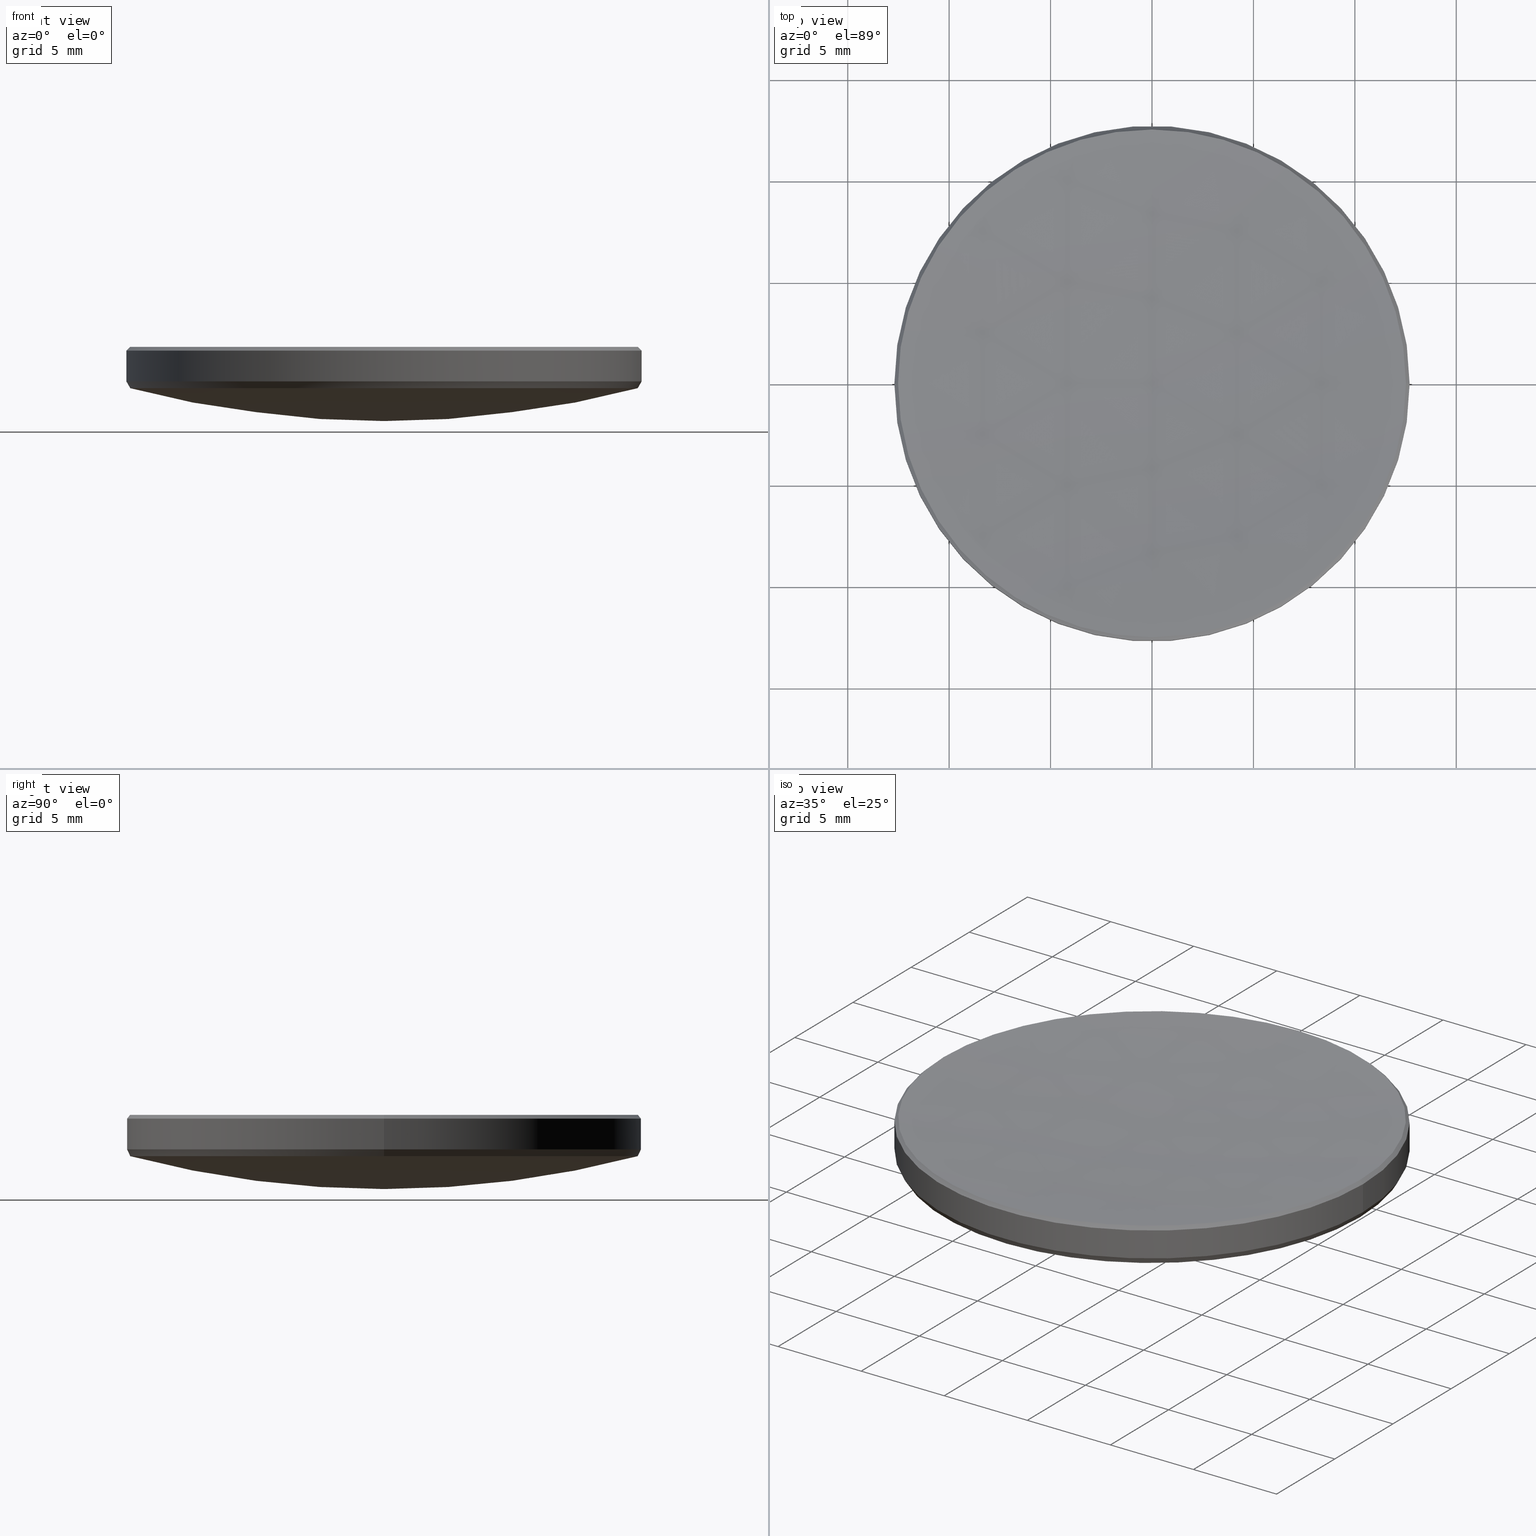
[diagram: canonical four-view strip — front | top / right | iso, engineering-drawing reading convention]
A machine part, canonical four-view strip (front | top / right | iso — engineering-drawing reading convention). The complete STEP part file that produces these views, byte-faithful:
ISO-10303-21;
HEADER;
FILE_DESCRIPTION (( 'STEP AP214' ),
    '1' );
FILE_NAME ('GLM1-025B-150-NIR.STEP',
    '2024-08-09T02:15:41',
    ( 'Windows User' ),
    ( 'P R C' ),
    'SwSTEP 2.0',
    'SolidWorks 2022',
    '' );
FILE_SCHEMA (( 'AUTOMOTIVE_DESIGN' ));
ENDSEC;

DATA;
#1 = EDGE_CURVE ( 'NONE', #115, #258, #35, .T. ) ;
#2 = SHAPE_DEFINITION_REPRESENTATION ( #219, #269 ) ;
#3 = VECTOR ( 'NONE', #83, 1000.000000000000000 ) ;
#4 =( LENGTH_UNIT ( ) NAMED_UNIT ( * ) SI_UNIT ( .MILLI., .METRE. ) );
#5 = EDGE_CURVE ( 'NONE', #319, #9, #18, .T. ) ;
#6 = ADVANCED_FACE ( 'NONE', ( #218 ), #292, .F. ) ;
#7 = ORIENTED_EDGE ( 'NONE', *, *, #234, .T. ) ;
#8 = AXIS2_PLACEMENT_3D ( 'NONE', #248, #172, #20 ) ;
#9 = VERTEX_POINT ( 'NONE', #290 ) ;
#10 = ADVANCED_FACE ( 'NONE', ( #116 ), #166, .T. ) ;
#11 = DIRECTION ( 'NONE',  ( 0.000000000000000000, 0.000000000000000000, -1.000000000000000000 ) ) ;
#12 = ORIENTED_EDGE ( 'NONE', *, *, #162, .F. ) ;
#13 = ORIENTED_EDGE ( 'NONE', *, *, #187, .T. ) ;
#14 = ORIENTED_EDGE ( 'NONE', *, *, #131, .T. ) ;
#15 = CIRCLE ( 'NONE', #296, 131.5600000000000023 ) ;
#16 = DIRECTION ( 'NONE',  ( -1.000000000000000000, 0.000000000000000000, 0.000000000000000000 ) ) ;
#17 = CARTESIAN_POINT ( 'NONE',  ( 0.000000000000000000, 0.000000000000000000, 10.00000000000000000 ) ) ;
#18 = LINE ( 'NONE', #242, #317 ) ;
#19 = DIRECTION ( 'NONE',  ( 0.000000000000000000, 1.000000000000000000, 0.000000000000000000 ) ) ;
#20 = DIRECTION ( 'NONE',  ( 1.000000000000000000, 0.000000000000000000, 0.000000000000000000 ) ) ;
#21 = DIRECTION ( 'NONE',  ( 1.000000000000000000, 0.000000000000000000, 0.000000000000000000 ) ) ;
#22 = AXIS2_PLACEMENT_3D ( 'NONE', #199, #144, #170 ) ;
#23 = SURFACE_SIDE_STYLE ('',( #306 ) ) ;
#24 = DIRECTION ( 'NONE',  ( -0.000000000000000000, -0.000000000000000000, -1.000000000000000000 ) ) ;
#25 =( NAMED_UNIT ( * ) PLANE_ANGLE_UNIT ( ) SI_UNIT ( $, .RADIAN. ) );
#26 = UNCERTAINTY_MEASURE_WITH_UNIT (LENGTH_MEASURE( 1.000000000000000082E-05 ), #57, 'distance_accuracy_value', 'NONE');
#27 = DIRECTION ( 'NONE',  ( -0.000000000000000000, -0.000000000000000000, -1.000000000000000000 ) ) ;
#28 = CARTESIAN_POINT ( 'NONE',  ( 0.000000000000000000, 0.000000000000000000, 4.282866881517001900 ) ) ;
#29 = AXIS2_PLACEMENT_3D ( 'NONE', #53, #76, #202 ) ;
#30 =( NAMED_UNIT ( * ) PLANE_ANGLE_UNIT ( ) SI_UNIT ( $, .RADIAN. ) );
#31 = APPLICATION_PROTOCOL_DEFINITION ( 'draft international standard', 'automotive_design', 1998, #321 ) ;
#32 = EDGE_CURVE ( 'NONE', #213, #191, #15, .T. ) ;
#33 = PRODUCT_CONTEXT ( 'NONE', #132, 'mechanical' ) ;
#34 = APPLICATION_PROTOCOL_DEFINITION ( 'draft international standard', 'automotive_design', 1998, #132 ) ;
#35 = CIRCLE ( 'NONE', #133, 49.05999999999999517 ) ;
#36 = ORIENTED_EDGE ( 'NONE', *, *, #112, .T. ) ;
#37 = VECTOR ( 'NONE', #141, 1000.000000000000000 ) ;
#38 = EDGE_LOOP ( 'NONE', ( #108, #12, #60, #161, #58 ) ) ;
#39 = CARTESIAN_POINT ( 'NONE',  ( 12.69999999999999929, 1.555301434917138433E-15, 4.282866881517001900 ) ) ;
#40 = CARTESIAN_POINT ( 'NONE',  ( 0.000000000000000000, 0.000000000000000000, 51.38769460524535049 ) ) ;
#41 = EDGE_LOOP ( 'NONE', ( #267, #318, #160, #155, #190 ) ) ;
#42 = VERTEX_POINT ( 'NONE', #90 ) ;
#43 = EDGE_LOOP ( 'NONE', ( #293, #136, #268, #212, #163 ) ) ;
#44 = CONICAL_SURFACE ( 'NONE', #278, 12.51756548749907161, 0.7853981633974911336 ) ;
#45 = CIRCLE ( 'NONE', #134, 12.51756548749907694 ) ;
#46 = ORIENTED_EDGE ( 'NONE', *, *, #143, .T. ) ;
#47 = DIRECTION ( 'NONE',  ( -1.000000000000000000, 0.000000000000000000, 0.000000000000000000 ) ) ;
#48 = CARTESIAN_POINT ( 'NONE',  ( -1.532959650738299683E-15, -12.51756548749897568, 5.982434512500911516 ) ) ;
#49 = FACE_OUTER_BOUND ( 'NONE', #38, .T. ) ;
#50 = SPHERICAL_SURFACE ( 'NONE', #207, 49.05999999999999517 ) ;
#51 = FILL_AREA_STYLE_COLOUR ( '', #194 ) ;
#52 = FACE_OUTER_BOUND ( 'NONE', #308, .T. ) ;
#53 = CARTESIAN_POINT ( 'NONE',  ( 0.000000000000000000, 0.000000000000000000, 5.982434512500911516 ) ) ;
#54 = CARTESIAN_POINT ( 'NONE',  ( 0.000000000000000000, 0.000000000000000000, 3.948723936848863580 ) ) ;
#55 = DIRECTION ( 'NONE',  ( -1.000000000000000000, 0.000000000000000000, 0.000000000000000000 ) ) ;
#56 = CIRCLE ( 'NONE', #330, 12.51756548749907694 ) ;
#57 =( LENGTH_UNIT ( ) NAMED_UNIT ( * ) SI_UNIT ( .MILLI., .METRE. ) );
#58 = ORIENTED_EDGE ( 'NONE', *, *, #74, .F. ) ;
#59 = FACE_OUTER_BOUND ( 'NONE', #119, .T. ) ;
#60 = ORIENTED_EDGE ( 'NONE', *, *, #286, .F. ) ;
#61 = EDGE_CURVE ( 'NONE', #264, #67, #188, .T. ) ;
#62 = DIRECTION ( 'NONE',  ( -0.000000000000000000, -0.000000000000000000, -1.000000000000000000 ) ) ;
#63 = ORIENTED_EDGE ( 'NONE', *, *, #286, .T. ) ;
#64 = VERTEX_POINT ( 'NONE', #39 ) ;
#65 = ADVANCED_FACE ( 'NONE', ( #244 ), #185, .T. ) ;
#66 = ORIENTED_EDGE ( 'NONE', *, *, #245, .F. ) ;
#67 = VERTEX_POINT ( 'NONE', #221 ) ;
#68 = CLOSED_SHELL ( 'NONE', ( #70, #10, #261, #227, #65, #184, #201, #6, #95, #259 ) ) ;
#69 = CARTESIAN_POINT ( 'NONE',  ( 0.000000000000000000, 0.000000000000000000, 136.9455749538715850 ) ) ;
#70 = ADVANCED_FACE ( 'NONE', ( #59 ), #44, .T. ) ;
#71 = CIRCLE ( 'NONE', #22, 12.51756548749907694 ) ;
#72 = AXIS2_PLACEMENT_3D ( 'NONE', #54, #148, #256 ) ;
#73 = DIRECTION ( 'NONE',  ( -0.000000000000000000, -0.000000000000000000, 1.000000000000000000 ) ) ;
#74 = EDGE_CURVE ( 'NONE', #198, #64, #216, .T. ) ;
#75 = DIRECTION ( 'NONE',  ( 1.000000000000000000, 0.000000000000000000, 0.000000000000000000 ) ) ;
#76 = DIRECTION ( 'NONE',  ( -0.000000000000000000, -0.000000000000000000, 1.000000000000000000 ) ) ;
#77 = CARTESIAN_POINT ( 'NONE',  ( 0.000000000000000000, 0.000000000000000000, 4.282866881517001900 ) ) ;
#78 = CYLINDRICAL_SURFACE ( 'NONE', #169, 12.69999999999999929 ) ;
#79 = AXIS2_PLACEMENT_3D ( 'NONE', #81, #222, #175 ) ;
#80 = CARTESIAN_POINT ( 'NONE',  ( 0.000000000000000000, 0.000000000000000000, 5.982434512500911516 ) ) ;
#81 = CARTESIAN_POINT ( 'NONE',  ( 0.000000000000000000, 0.000000000000000000, 51.38769460524535049 ) ) ;
#82 = ORIENTED_EDGE ( 'NONE', *, *, #245, .T. ) ;
#83 = DIRECTION ( 'NONE',  ( 0.7071067811865777708, 8.659560562355303869E-17, -0.7071067811865172636 ) ) ;
#84 = CARTESIAN_POINT ( 'NONE',  ( -12.51756548749907694, 0.000000000000000000, 5.982434512500911516 ) ) ;
#85 = AXIS2_PLACEMENT_3D ( 'NONE', #128, #142, #21 ) ;
#86 =( NAMED_UNIT ( * ) PLANE_ANGLE_UNIT ( ) SI_UNIT ( $, .RADIAN. ) );
#87 = SURFACE_SIDE_STYLE ('',( #180 ) ) ;
#88 =( GEOMETRIC_REPRESENTATION_CONTEXT ( 3 ) GLOBAL_UNCERTAINTY_ASSIGNED_CONTEXT ( ( #149 ) ) GLOBAL_UNIT_ASSIGNED_CONTEXT ( ( #4, #86, #110 ) ) REPRESENTATION_CONTEXT ( 'NONE', 'WORKASPACE' ) );
#89 = ORIENTED_EDGE ( 'NONE', *, *, #255, .T. ) ;
#90 = CARTESIAN_POINT ( 'NONE',  ( 0.000000000000000000, 12.51756548749897568, 5.982434512500911516 ) ) ;
#91 = VERTEX_POINT ( 'NONE', #329 ) ;
#92 = ORIENTED_EDGE ( 'NONE', *, *, #1, .T. ) ;
#93 = MECHANICAL_DESIGN_GEOMETRIC_PRESENTATION_REPRESENTATION (  '', ( #159 ), #320 ) ;
#94 = EDGE_LOOP ( 'NONE', ( #289, #13, #46, #182 ) ) ;
#95 = ADVANCED_FACE ( 'NONE', ( #49 ), #223, .T. ) ;
#96 = DIRECTION ( 'NONE',  ( -0.7071067811865777708, 0.000000000000000000, -0.7071067811865172636 ) ) ;
#97 = AXIS2_PLACEMENT_3D ( 'NONE', #28, #106, #206 ) ;
#98 = CARTESIAN_POINT ( 'NONE',  ( 12.51756548749907161, 1.532959650738311713E-15, 5.982434512500911516 ) ) ;
#99 = DIRECTION ( 'NONE',  ( 1.000000000000000000, 0.000000000000000000, 0.000000000000000000 ) ) ;
#100 = DIRECTION ( 'NONE',  ( 1.000000000000000000, 0.000000000000000000, 0.000000000000000000 ) ) ;
#101 = ORIENTED_EDGE ( 'NONE', *, *, #32, .T. ) ;
#102 = FACE_OUTER_BOUND ( 'NONE', #41, .T. ) ;
#103 = DIRECTION ( 'NONE',  ( -0.000000000000000000, -0.000000000000000000, 1.000000000000000000 ) ) ;
#104 = DIRECTION ( 'NONE',  ( 0.000000000000000000, 1.000000000000000000, 0.000000000000000000 ) ) ;
#105 = CIRCLE ( 'NONE', #279, 12.50710445798774728 ) ;
#106 = DIRECTION ( 'NONE',  ( -0.000000000000000000, -0.000000000000000000, 1.000000000000000000 ) ) ;
#107 = UNCERTAINTY_MEASURE_WITH_UNIT (LENGTH_MEASURE( 1.000000000000000082E-05 ), #282, 'distance_accuracy_value', 'NONE');
#108 = ORIENTED_EDGE ( 'NONE', *, *, #156, .F. ) ;
#109 = DIRECTION ( 'NONE',  ( 0.000000000000000000, 0.000000000000000000, 1.000000000000000000 ) ) ;
#110 =( NAMED_UNIT ( * ) SI_UNIT ( $, .STERADIAN. ) SOLID_ANGLE_UNIT ( ) );
#111 = EDGE_CURVE ( 'NONE', #191, #214, #71, .T. ) ;
#112 = EDGE_CURVE ( 'NONE', #214, #42, #45, .T. ) ;
#113 = DIRECTION ( 'NONE',  ( -1.000000000000000000, 1.224646799147353207E-16, 0.000000000000000000 ) ) ;
#114 = ORIENTED_EDGE ( 'NONE', *, *, #234, .F. ) ;
#115 = VERTEX_POINT ( 'NONE', #300 ) ;
#116 = FACE_OUTER_BOUND ( 'NONE', #43, .T. ) ;
#117 = CIRCLE ( 'NONE', #8, 12.50710445798774728 ) ;
#118 = DIRECTION ( 'NONE',  ( -1.000000000000000000, 0.000000000000000000, 0.000000000000000000 ) ) ;
#119 = EDGE_LOOP ( 'NONE', ( #295, #273, #114, #164, #205 ) ) ;
#120 = PRODUCT ( 'GLM1-025B-150-NIR', 'GLM1-025B-150-NIR', '', ( #33 ) ) ;
#121 = LINE ( 'NONE', #233, #179 ) ;
#122 = CARTESIAN_POINT ( 'NONE',  ( 0.000000000000000000, 0.000000000000000000, 4.282866881517001900 ) ) ;
#123 = CIRCLE ( 'NONE', #85, 12.69999999999999929 ) ;
#124 = DIRECTION ( 'NONE',  ( 0.4999572784161532835, 0.000000000000000000, 0.8660500676974242085 ) ) ;
#125 = PRESENTATION_STYLE_ASSIGNMENT (( #176 ) ) ;
#126 = CARTESIAN_POINT ( 'NONE',  ( -1.531678544107628650E-15, -12.50710445798775083, 3.948723936848860028 ) ) ;
#127 = CARTESIAN_POINT ( 'NONE',  ( -12.69999999999999929, 0.000000000000000000, 4.282866881517001900 ) ) ;
#128 = CARTESIAN_POINT ( 'NONE',  ( 0.000000000000000000, 0.000000000000000000, 5.799999999999999822 ) ) ;
#129 = EDGE_CURVE ( 'NONE', #115, #264, #325, .T. ) ;
#130 = PRESENTATION_LAYER_ASSIGNMENT (  '', '', ( #145 ) ) ;
#131 = EDGE_CURVE ( 'NONE', #91, #9, #263, .T. ) ;
#132 = APPLICATION_CONTEXT ( 'automotive_design' ) ;
#133 = AXIS2_PLACEMENT_3D ( 'NONE', #40, #246, #137 ) ;
#134 = AXIS2_PLACEMENT_3D ( 'NONE', #80, #328, #303 ) ;
#135 = ORIENTED_EDGE ( 'NONE', *, *, #129, .F. ) ;
#136 = ORIENTED_EDGE ( 'NONE', *, *, #156, .T. ) ;
#137 = DIRECTION ( 'NONE',  ( -1.224646799147353207E-16, -1.000000000000000000, 0.000000000000000000 ) ) ;
#138 = ORIENTED_EDGE ( 'NONE', *, *, #162, .T. ) ;
#139 = DIRECTION ( 'NONE',  ( 1.000000000000000000, 0.000000000000000000, 0.000000000000000000 ) ) ;
#140 = EDGE_LOOP ( 'NONE', ( #7, #157, #238, #66 ) ) ;
#141 = DIRECTION ( 'NONE',  ( -0.4999572784161532835, 6.122710807227642125E-17, 0.8660500676974242085 ) ) ;
#142 = DIRECTION ( 'NONE',  ( 0.000000000000000000, 0.000000000000000000, -1.000000000000000000 ) ) ;
#143 = EDGE_CURVE ( 'NONE', #42, #319, #285, .T. ) ;
#144 = DIRECTION ( 'NONE',  ( -0.000000000000000000, -0.000000000000000000, 1.000000000000000000 ) ) ;
#145 = STYLED_ITEM ( 'NONE', ( #125 ), #152 ) ;
#146 = CARTESIAN_POINT ( 'NONE',  ( 0.000000000000000000, 8.055726644791288963E-15, 5.385574953871569370 ) ) ;
#147 = SPHERICAL_SURFACE ( 'NONE', #288, 131.5600000000000023 ) ;
#148 = DIRECTION ( 'NONE',  ( 0.000000000000000000, 0.000000000000000000, -1.000000000000000000 ) ) ;
#149 = UNCERTAINTY_MEASURE_WITH_UNIT (LENGTH_MEASURE( 1.000000000000000082E-05 ), #4, 'distance_accuracy_value', 'NONE');
#150 = AXIS2_PLACEMENT_3D ( 'NONE', #77, #73, #326 ) ;
#151 = SURFACE_STYLE_USAGE ( .BOTH. , #87 ) ;
#152 = MANIFOLD_SOLID_BREP ( '����1', #68 ) ;
#153 = PRESENTATION_STYLE_ASSIGNMENT (( #151 ) ) ;
#154 = AXIS2_PLACEMENT_3D ( 'NONE', #17, #62, #118 ) ;
#155 = ORIENTED_EDGE ( 'NONE', *, *, #5, .T. ) ;
#156 = EDGE_CURVE ( 'NONE', #183, #198, #298, .T. ) ;
#157 = ORIENTED_EDGE ( 'NONE', *, *, #271, .T. ) ;
#158 = CARTESIAN_POINT ( 'NONE',  ( 0.000000000000000000, 0.000000000000000000, 4.282866881517001900 ) ) ;
#159 = STYLED_ITEM ( 'NONE', ( #153 ), #269 ) ;
#160 = ORIENTED_EDGE ( 'NONE', *, *, #243, .F. ) ;
#161 = ORIENTED_EDGE ( 'NONE', *, *, #210, .T. ) ;
#162 = EDGE_CURVE ( 'NONE', #258, #183, #117, .T. ) ;
#163 = ORIENTED_EDGE ( 'NONE', *, *, #61, .F. ) ;
#164 = ORIENTED_EDGE ( 'NONE', *, *, #5, .F. ) ;
#165 = DIRECTION ( 'NONE',  ( 0.000000000000000000, 1.000000000000000000, 0.000000000000000000 ) ) ;
#166 = CONICAL_SURFACE ( 'NONE', #250, 12.69999999999999929, 0.5235494456648849271 ) ;
#167 = AXIS2_PLACEMENT_3D ( 'NONE', #294, #270, #139 ) ;
#168 = DIRECTION ( 'NONE',  ( -1.224646799147353207E-16, -1.000000000000000000, 0.000000000000000000 ) ) ;
#169 = AXIS2_PLACEMENT_3D ( 'NONE', #225, #27, #299 ) ;
#170 = DIRECTION ( 'NONE',  ( 1.000000000000000000, 0.000000000000000000, 0.000000000000000000 ) ) ;
#171 = DIRECTION ( 'NONE',  ( -1.000000000000000000, 0.000000000000000000, 0.000000000000000000 ) ) ;
#172 = DIRECTION ( 'NONE',  ( 0.000000000000000000, 0.000000000000000000, -1.000000000000000000 ) ) ;
#173 = FACE_OUTER_BOUND ( 'NONE', #235, .T. ) ;
#174 = DIRECTION ( 'NONE',  ( 0.000000000000000000, 0.000000000000000000, -1.000000000000000000 ) ) ;
#175 = DIRECTION ( 'NONE',  ( 0.000000000000000000, 1.000000000000000000, 0.000000000000000000 ) ) ;
#176 = SURFACE_STYLE_USAGE ( .BOTH. , #23 ) ;
#177 = LINE ( 'NONE', #283, #211 ) ;
#178 = CARTESIAN_POINT ( 'NONE',  ( 0.000000000000000000, 0.000000000000000000, 3.948723936848863580 ) ) ;
#179 = VECTOR ( 'NONE', #24, 1000.000000000000000 ) ;
#180 = SURFACE_STYLE_FILL_AREA ( #312 ) ;
#181 =( GEOMETRIC_REPRESENTATION_CONTEXT ( 3 ) GLOBAL_UNCERTAINTY_ASSIGNED_CONTEXT ( ( #107 ) ) GLOBAL_UNIT_ASSIGNED_CONTEXT ( ( #282, #25, #229 ) ) REPRESENTATION_CONTEXT ( 'NONE', 'WORKASPACE' ) );
#182 = ORIENTED_EDGE ( 'NONE', *, *, #243, .T. ) ;
#183 = VERTEX_POINT ( 'NONE', #249 ) ;
#184 = ADVANCED_FACE ( 'NONE', ( #324 ), #78, .T. ) ;
#185 = CYLINDRICAL_SURFACE ( 'NONE', #154, 12.69999999999999929 ) ;
#186 = ORIENTED_EDGE ( 'NONE', *, *, #271, .F. ) ;
#187 = EDGE_CURVE ( 'NONE', #213, #42, #232, .T. ) ;
#188 = CIRCLE ( 'NONE', #167, 12.50710445798774728 ) ;
#189 = VECTOR ( 'NONE', #124, 1000.000000000000000 ) ;
#190 = ORIENTED_EDGE ( 'NONE', *, *, #131, .F. ) ;
#191 = VERTEX_POINT ( 'NONE', #48 ) ;
#192 = EDGE_CURVE ( 'NONE', #214, #91, #302, .T. ) ;
#193 = ORIENTED_EDGE ( 'NONE', *, *, #1, .F. ) ;
#194 = COLOUR_RGB ( '',1.000000000000000000, 1.000000000000000000, 1.000000000000000000 ) ;
#195 = DIRECTION ( 'NONE',  ( 0.000000000000000000, 0.000000000000000000, -1.000000000000000000 ) ) ;
#196 = CARTESIAN_POINT ( 'NONE',  ( 0.000000000000000000, 0.000000000000000000, 5.799999999999999822 ) ) ;
#197 = CARTESIAN_POINT ( 'NONE',  ( 0.000000000000000000, 0.000000000000000000, 51.38769460524535049 ) ) ;
#198 = VERTEX_POINT ( 'NONE', #127 ) ;
#199 = CARTESIAN_POINT ( 'NONE',  ( 0.000000000000000000, 0.000000000000000000, 5.982434512500911516 ) ) ;
#200 = FACE_OUTER_BOUND ( 'NONE', #315, .T. ) ;
#201 = ADVANCED_FACE ( 'NONE', ( #173 ), #50, .T. ) ;
#202 = DIRECTION ( 'NONE',  ( 1.000000000000000000, 0.000000000000000000, 0.000000000000000000 ) ) ;
#203 = AXIS2_PLACEMENT_3D ( 'NONE', #226, #224, #174 ) ;
#204 = DIRECTION ( 'NONE',  ( -0.000000000000000000, -0.000000000000000000, 1.000000000000000000 ) ) ;
#205 = ORIENTED_EDGE ( 'NONE', *, *, #143, .F. ) ;
#206 = DIRECTION ( 'NONE',  ( -1.000000000000000000, 0.000000000000000000, 0.000000000000000000 ) ) ;
#207 = AXIS2_PLACEMENT_3D ( 'NONE', #197, #55, #19 ) ;
#208 = ORIENTED_EDGE ( 'NONE', *, *, #129, .T. ) ;
#209 = FILL_AREA_STYLE_COLOUR ( '', #236 ) ;
#210 = EDGE_CURVE ( 'NONE', #67, #64, #247, .T. ) ;
#211 = VECTOR ( 'NONE', #331, 1000.000000000000000 ) ;
#212 = ORIENTED_EDGE ( 'NONE', *, *, #210, .F. ) ;
#213 = VERTEX_POINT ( 'NONE', #146 ) ;
#214 = VERTEX_POINT ( 'NONE', #327 ) ;
#215 = AXIS2_PLACEMENT_3D ( 'NONE', #69, #16, #165 ) ;
#216 = CIRCLE ( 'NONE', #262, 12.69999999999999929 ) ;
#217 = MECHANICAL_DESIGN_GEOMETRIC_PRESENTATION_REPRESENTATION (  '', ( #145 ), #181 ) ;
#218 = FACE_OUTER_BOUND ( 'NONE', #94, .T. ) ;
#219 = PRODUCT_DEFINITION_SHAPE ( 'NONE', 'NONE',  #291 ) ;
#220 = ORIENTED_EDGE ( 'NONE', *, *, #187, .F. ) ;
#221 = CARTESIAN_POINT ( 'NONE',  ( 12.50710445798774728, 0.000000000000000000, 3.948723936848863580 ) ) ;
#222 = DIRECTION ( 'NONE',  ( -1.000000000000000000, 0.000000000000000000, 0.000000000000000000 ) ) ;
#223 = CONICAL_SURFACE ( 'NONE', #150, 12.69999999999999929, 0.5235494456648849271 ) ;
#224 = DIRECTION ( 'NONE',  ( 1.000000000000000000, -0.000000000000000000, 0.000000000000000000 ) ) ;
#225 = CARTESIAN_POINT ( 'NONE',  ( 0.000000000000000000, 0.000000000000000000, 10.00000000000000000 ) ) ;
#226 = CARTESIAN_POINT ( 'NONE',  ( 0.000000000000000000, 0.000000000000000000, 51.38769460524535049 ) ) ;
#227 = ADVANCED_FACE ( 'NONE', ( #200 ), #309, .T. ) ;
#228 = CARTESIAN_POINT ( 'NONE',  ( 0.000000000000000000, 0.000000000000000000, 5.982434512500911516 ) ) ;
#229 =( NAMED_UNIT ( * ) SI_UNIT ( $, .STERADIAN. ) SOLID_ANGLE_UNIT ( ) );
#230 = PRODUCT_DEFINITION_CONTEXT ( 'detailed design', #321, 'design' ) ;
#231 = DIRECTION ( 'NONE',  ( -1.000000000000000000, 0.000000000000000000, 0.000000000000000000 ) ) ;
#232 = CIRCLE ( 'NONE', #313, 131.5600000000000023 ) ;
#233 = CARTESIAN_POINT ( 'NONE',  ( -12.69999999999999929, 0.000000000000000000, 10.00000000000000000 ) ) ;
#234 = EDGE_CURVE ( 'NONE', #9, #91, #123, .T. ) ;
#235 = EDGE_LOOP ( 'NONE', ( #193, #208, #323, #63 ) ) ;
#236 = COLOUR_RGB ( '',1.000000000000000000, 1.000000000000000000, 1.000000000000000000 ) ;
#237 = EDGE_LOOP ( 'NONE', ( #186, #14, #82, #241 ) ) ;
#238 = ORIENTED_EDGE ( 'NONE', *, *, #301, .T. ) ;
#239 = CONICAL_SURFACE ( 'NONE', #251, 12.51756548749907161, 0.7853981633974911336 ) ;
#240 = CARTESIAN_POINT ( 'NONE',  ( 0.000000000000000000, 0.000000000000000000, 5.982434512500911516 ) ) ;
#241 = ORIENTED_EDGE ( 'NONE', *, *, #74, .T. ) ;
#242 = CARTESIAN_POINT ( 'NONE',  ( -12.51756548749907161, 0.000000000000000000, 5.982434512500911516 ) ) ;
#243 = EDGE_CURVE ( 'NONE', #319, #191, #56, .T. ) ;
#244 = FACE_OUTER_BOUND ( 'NONE', #140, .T. ) ;
#245 = EDGE_CURVE ( 'NONE', #9, #198, #121, .T. ) ;
#246 = DIRECTION ( 'NONE',  ( -1.000000000000000000, 1.224646799147353207E-16, 0.000000000000000000 ) ) ;
#247 = LINE ( 'NONE', #275, #189 ) ;
#248 = CARTESIAN_POINT ( 'NONE',  ( 0.000000000000000000, 0.000000000000000000, 3.948723936848863580 ) ) ;
#249 = CARTESIAN_POINT ( 'NONE',  ( -12.50710445798774728, 1.543489989512383738E-15, 3.948723936848863580 ) ) ;
#250 = AXIS2_PLACEMENT_3D ( 'NONE', #158, #265, #316 ) ;
#251 = AXIS2_PLACEMENT_3D ( 'NONE', #304, #281, #171 ) ;
#252 = FILL_AREA_STYLE ('',( #51 ) ) ;
#253 = DIRECTION ( 'NONE',  ( 1.000000000000000000, 0.000000000000000000, 0.000000000000000000 ) ) ;
#254 = CARTESIAN_POINT ( 'NONE',  ( 0.000000000000000000, 0.000000000000000000, 136.9455749538715850 ) ) ;
#255 = EDGE_CURVE ( 'NONE', #183, #264, #105, .T. ) ;
#256 = DIRECTION ( 'NONE',  ( 1.000000000000000000, 0.000000000000000000, 0.000000000000000000 ) ) ;
#257 = AXIS2_PLACEMENT_3D ( 'NONE', #196, #280, #99 ) ;
#258 = VERTEX_POINT ( 'NONE', #126 ) ;
#259 = ADVANCED_FACE ( 'NONE', ( #102 ), #239, .T. ) ;
#260 =( NAMED_UNIT ( * ) SI_UNIT ( $, .STERADIAN. ) SOLID_ANGLE_UNIT ( ) );
#261 = ADVANCED_FACE ( 'NONE', ( #52 ), #147, .F. ) ;
#262 = AXIS2_PLACEMENT_3D ( 'NONE', #122, #103, #276 ) ;
#263 = CIRCLE ( 'NONE', #257, 12.69999999999999929 ) ;
#264 = VERTEX_POINT ( 'NONE', #307 ) ;
#265 = DIRECTION ( 'NONE',  ( -0.000000000000000000, -0.000000000000000000, 1.000000000000000000 ) ) ;
#266 = PRESENTATION_LAYER_ASSIGNMENT (  '', '', ( #159 ) ) ;
#267 = ORIENTED_EDGE ( 'NONE', *, *, #192, .F. ) ;
#268 = ORIENTED_EDGE ( 'NONE', *, *, #301, .F. ) ;
#269 = ADVANCED_BREP_SHAPE_REPRESENTATION ( 'GLM1-025B-150-NIR', ( #152, #272 ), #88 ) ;
#270 = DIRECTION ( 'NONE',  ( 0.000000000000000000, 0.000000000000000000, -1.000000000000000000 ) ) ;
#271 = EDGE_CURVE ( 'NONE', #91, #64, #177, .T. ) ;
#272 = AXIS2_PLACEMENT_3D ( 'NONE', #332, #109, #287 ) ;
#273 = ORIENTED_EDGE ( 'NONE', *, *, #192, .T. ) ;
#274 = CARTESIAN_POINT ( 'NONE',  ( -12.69999999999999929, 1.555301434917138433E-15, 4.282866881517001900 ) ) ;
#275 = CARTESIAN_POINT ( 'NONE',  ( 12.69999999999999929, 0.000000000000000000, 4.282866881517001900 ) ) ;
#276 = DIRECTION ( 'NONE',  ( -1.000000000000000000, 0.000000000000000000, 0.000000000000000000 ) ) ;
#277 = CARTESIAN_POINT ( 'NONE',  ( 0.000000000000000000, 0.000000000000000000, 136.9455749538715850 ) ) ;
#278 = AXIS2_PLACEMENT_3D ( 'NONE', #240, #11, #47 ) ;
#279 = AXIS2_PLACEMENT_3D ( 'NONE', #178, #195, #75 ) ;
#280 = DIRECTION ( 'NONE',  ( 0.000000000000000000, 0.000000000000000000, -1.000000000000000000 ) ) ;
#281 = DIRECTION ( 'NONE',  ( 0.000000000000000000, 0.000000000000000000, -1.000000000000000000 ) ) ;
#282 =( LENGTH_UNIT ( ) NAMED_UNIT ( * ) SI_UNIT ( .MILLI., .METRE. ) );
#283 = CARTESIAN_POINT ( 'NONE',  ( 12.69999999999999929, 1.555301434917138433E-15, 10.00000000000000000 ) ) ;
#284 = DIRECTION ( 'NONE',  ( 0.000000000000000000, 0.000000000000000000, -1.000000000000000000 ) ) ;
#285 = CIRCLE ( 'NONE', #29, 12.51756548749907694 ) ;
#286 = EDGE_CURVE ( 'NONE', #67, #258, #311, .T. ) ;
#287 = DIRECTION ( 'NONE',  ( 1.000000000000000000, 0.000000000000000000, 0.000000000000000000 ) ) ;
#288 = AXIS2_PLACEMENT_3D ( 'NONE', #254, #231, #104 ) ;
#289 = ORIENTED_EDGE ( 'NONE', *, *, #32, .F. ) ;
#290 = CARTESIAN_POINT ( 'NONE',  ( -12.69999999999999929, 0.000000000000000000, 5.799999999999999822 ) ) ;
#291 = PRODUCT_DEFINITION ( 'δ֪', '', #297, #230 ) ;
#292 = SPHERICAL_SURFACE ( 'NONE', #215, 131.5600000000000023 ) ;
#293 = ORIENTED_EDGE ( 'NONE', *, *, #255, .F. ) ;
#294 = CARTESIAN_POINT ( 'NONE',  ( 0.000000000000000000, 0.000000000000000000, 3.948723936848863580 ) ) ;
#295 = ORIENTED_EDGE ( 'NONE', *, *, #112, .F. ) ;
#296 = AXIS2_PLACEMENT_3D ( 'NONE', #322, #113, #168 ) ;
#297 = PRODUCT_DEFINITION_FORMATION_WITH_SPECIFIED_SOURCE ( '�κ�', '', #120, .NOT_KNOWN. ) ;
#298 = LINE ( 'NONE', #274, #37 ) ;
#299 = DIRECTION ( 'NONE',  ( -1.000000000000000000, 0.000000000000000000, 0.000000000000000000 ) ) ;
#300 = CARTESIAN_POINT ( 'NONE',  ( 0.000000000000000000, 3.004058598308457002E-15, 2.327694605245358872 ) ) ;
#301 = EDGE_CURVE ( 'NONE', #64, #198, #305, .T. ) ;
#302 = LINE ( 'NONE', #98, #3 ) ;
#303 = DIRECTION ( 'NONE',  ( 1.000000000000000000, 0.000000000000000000, 0.000000000000000000 ) ) ;
#304 = CARTESIAN_POINT ( 'NONE',  ( 0.000000000000000000, 0.000000000000000000, 5.982434512500911516 ) ) ;
#305 = CIRCLE ( 'NONE', #97, 12.69999999999999929 ) ;
#306 = SURFACE_STYLE_FILL_AREA ( #252 ) ;
#307 = CARTESIAN_POINT ( 'NONE',  ( 0.000000000000000000, 12.50710445798775083, 3.948723936848860028 ) ) ;
#308 = EDGE_LOOP ( 'NONE', ( #220, #101, #310, #36 ) ) ;
#309 = SPHERICAL_SURFACE ( 'NONE', #79, 49.05999999999999517 ) ;
#310 = ORIENTED_EDGE ( 'NONE', *, *, #111, .T. ) ;
#311 = CIRCLE ( 'NONE', #72, 12.50710445798774728 ) ;
#312 = FILL_AREA_STYLE ('',( #209 ) ) ;
#313 = AXIS2_PLACEMENT_3D ( 'NONE', #277, #100, #284 ) ;
#314 = PRODUCT_RELATED_PRODUCT_CATEGORY ( 'part', '', ( #120 ) ) ;
#315 = EDGE_LOOP ( 'NONE', ( #135, #92, #138, #89 ) ) ;
#316 = DIRECTION ( 'NONE',  ( 1.000000000000000000, 0.000000000000000000, 0.000000000000000000 ) ) ;
#317 = VECTOR ( 'NONE', #96, 1000.000000000000000 ) ;
#318 = ORIENTED_EDGE ( 'NONE', *, *, #111, .F. ) ;
#319 = VERTEX_POINT ( 'NONE', #84 ) ;
#320 =( GEOMETRIC_REPRESENTATION_CONTEXT ( 3 ) GLOBAL_UNCERTAINTY_ASSIGNED_CONTEXT ( ( #26 ) ) GLOBAL_UNIT_ASSIGNED_CONTEXT ( ( #57, #30, #260 ) ) REPRESENTATION_CONTEXT ( 'NONE', 'WORKASPACE' ) );
#321 = APPLICATION_CONTEXT ( 'automotive_design' ) ;
#322 = CARTESIAN_POINT ( 'NONE',  ( 0.000000000000000000, 0.000000000000000000, 136.9455749538715850 ) ) ;
#323 = ORIENTED_EDGE ( 'NONE', *, *, #61, .T. ) ;
#324 = FACE_OUTER_BOUND ( 'NONE', #237, .T. ) ;
#325 = CIRCLE ( 'NONE', #203, 49.05999999999999517 ) ;
#326 = DIRECTION ( 'NONE',  ( 1.000000000000000000, 0.000000000000000000, 0.000000000000000000 ) ) ;
#327 = CARTESIAN_POINT ( 'NONE',  ( 12.51756548749907694, 1.544130542827725172E-15, 5.982434512500911516 ) ) ;
#328 = DIRECTION ( 'NONE',  ( -0.000000000000000000, -0.000000000000000000, 1.000000000000000000 ) ) ;
#329 = CARTESIAN_POINT ( 'NONE',  ( 12.69999999999999929, 1.555301434917138433E-15, 5.799999999999999822 ) ) ;
#330 = AXIS2_PLACEMENT_3D ( 'NONE', #228, #204, #253 ) ;
#331 = DIRECTION ( 'NONE',  ( -0.000000000000000000, -0.000000000000000000, -1.000000000000000000 ) ) ;
#332 = CARTESIAN_POINT ( 'NONE',  ( 0.000000000000000000, 0.000000000000000000, 0.000000000000000000 ) ) ;
ENDSEC;
END-ISO-10303-21;
